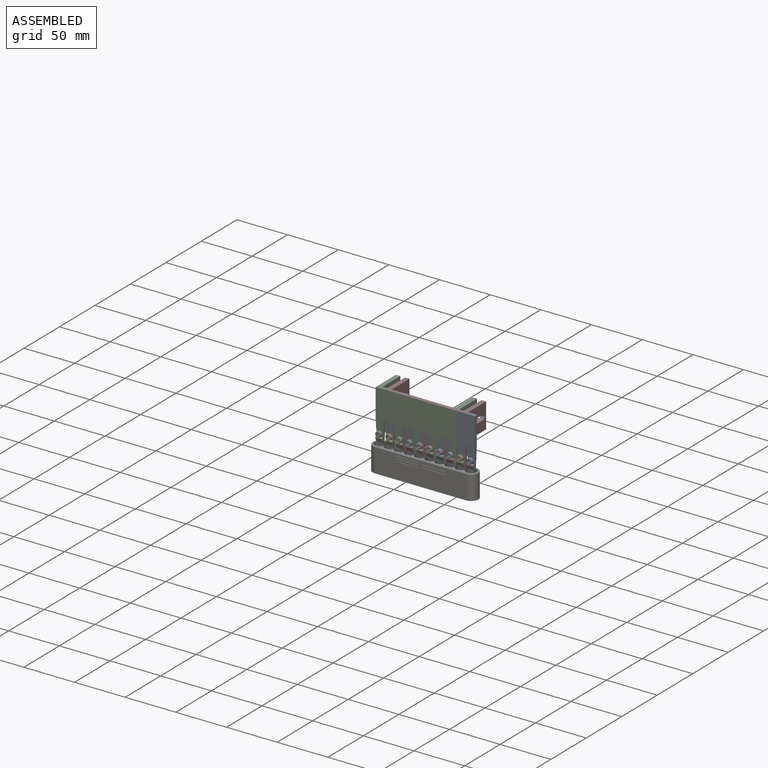
[diagram: assembled view]
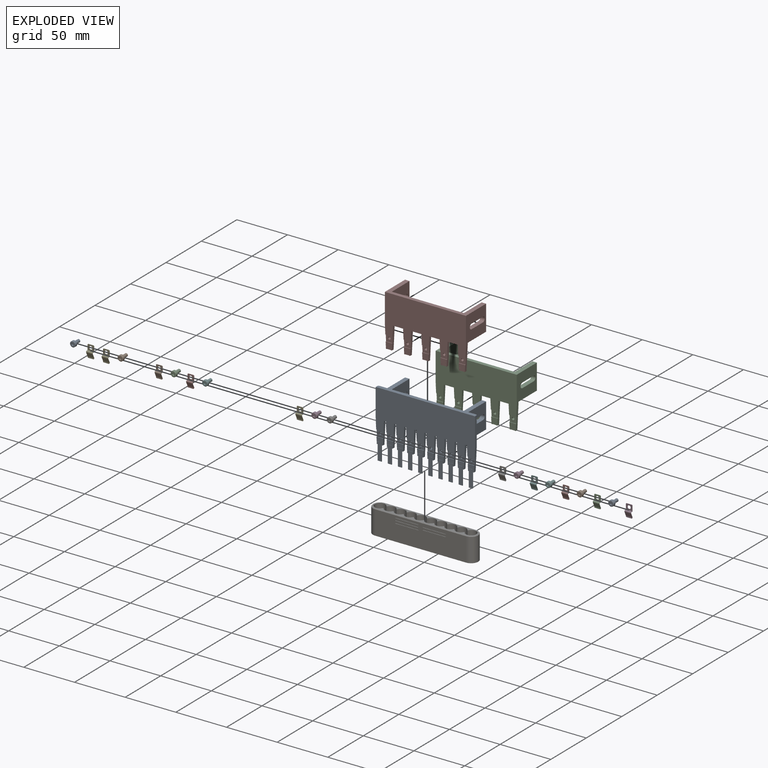
[diagram: exploded view]
GUIDED TOUR — MATED ASSEMBLY (Onshape document 8a0343a597088092eac7aeed, AutoMate assembly 8a0343a597088092eac7aeed_e6791ab1a02a11b802dfef5e_fe3fe33bd26811dbdfa1959e_default)

This assembly has 24 components, labeled P0..P23 below (a component is one placed occurrence of a part; the same part can appear more than once), held together by 5 mates. A mate is a constraint between two components; its type names the relative motion it leaves free:
  FASTENED — locks the two components together rigidly (no relative motion).
Axis/direction vectors are unit vectors and 'through' points are millimeter coordinates, both in the assembly's world frame.

MATES
  1. FASTENED "緊固 2": P7 <-> P16, direction (0.000, 0.000, -1.000) through (-52.23, -11.75, -7.50) mm
  2. FASTENED "緊固 5": P8 <-> P20, direction (0.000, 1.000, 0.000) through (-59.43, -27.55, -23.00) mm
  3. FASTENED "緊固 3": P22 <-> P16, direction (0.000, 0.000, 1.000) through (-59.43, -27.45, -32.00) mm
  4. FASTENED "緊固 4": P20 <-> P16, direction (0.000, 1.000, 0.000) through (-59.43, -27.15, -23.00) mm
  5. FASTENED "緊固 1": P16 <-> P10, direction (0.000, -1.000, 0.000) through (-59.43, -27.15, -23.00) mm

ASSEMBLY ORDER
  1. P16 — the base component [order heuristic]
  2. P7 — core [order heuristic]
  3. P10 — core [order heuristic]
  4. P22 [order verified]
  5. P14 [order verified]
  6. P6 [order verified]
  7. P3 [order verified]
  8. P4 [order verified]
  9. P11 [order verified]
  10. P5 [order verified]
  11. P13 [order verified]
  12. P15 [order verified]
  13. P21 [order verified]
  14. P23 [order verified]
  15. P2 [order verified]
  16. P1 [order verified]
  17. P17 [order verified]
  18. P18 [order verified]
  19. P9 [order verified]
  20. P12 [order verified]
  21. P0 [order verified]
  22. P19 [order verified]
  23. P8 [order verified]
  24. P20 [order verified]
(P22 verified with a relaxed clearance tolerance: the source model stores slight part interference there.)
Order-tag legend:
  [order verified] — this step's position reverses a verified removal order: the component was checked to insert without passing through the ones already placed.
  [order heuristic] — the first 3 components form the assembly's core: parts whose collision-free extraction could not be verified, listed in mate-graph order.

Of the 24 components, 10 carry the full construction recipe — the FeatureScript program that regenerates the part's solid from scratch; the rest are supplied as boundary geometry only.
Because this assembly has more than 12 components, the tour below covers the 12 most significant ones individually (every recipe-attached component first, then the largest by part volume), in assembly order; the remaining 12 are summarized together in a grouped section at the end.
Each toured component is shown spotlighted twice — in the assembled view, then in the exploded view, where a leader line traces a displaced component back to its assembled socket (saturated green if recipe-attached, orange if geometry-only; every other component desaturated gray) — followed by its recipe or geometry summary and the mates that hold it.
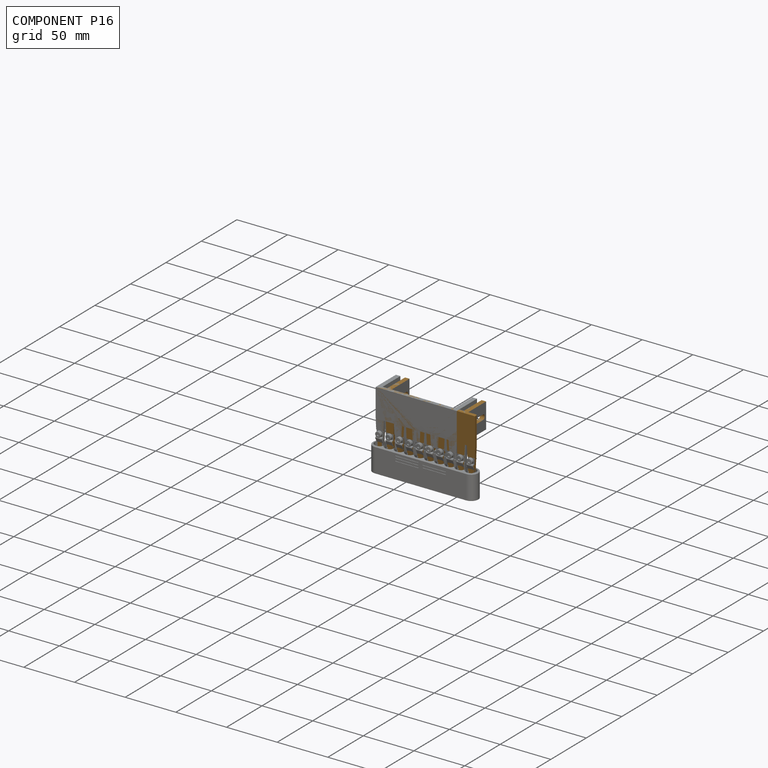
[diagram: component P16 — assembled]
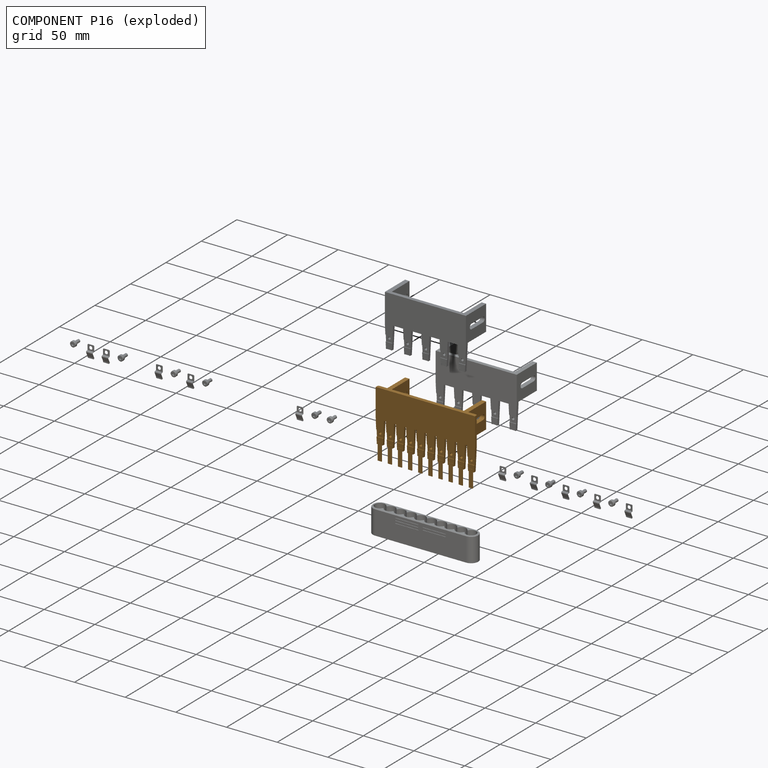
[diagram: component P16 — exploded]
COMPONENT P16 — geometry summary (no construction recipe available for this part):
  bounding box: 98.0 x 65.0 x 28.7 mm
  B-rep topology: 1 solid, 252 faces, 1456 edges
  volume: 19314 mm^3 (11% of its bounding box)
  symmetry: mirror-symmetric across its x mid-plane
Held by: FASTENED mate "緊固 2" to P7; FASTENED mate "緊固 3" to P22; FASTENED mate "緊固 4" to P20; FASTENED mate "緊固 1" to P10.
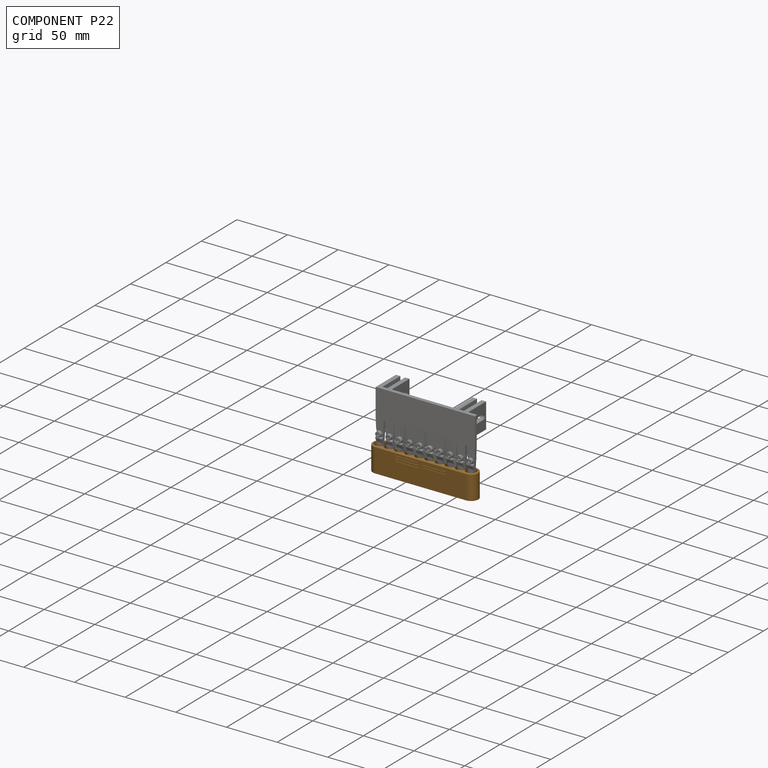
[diagram: component P22 — assembled]
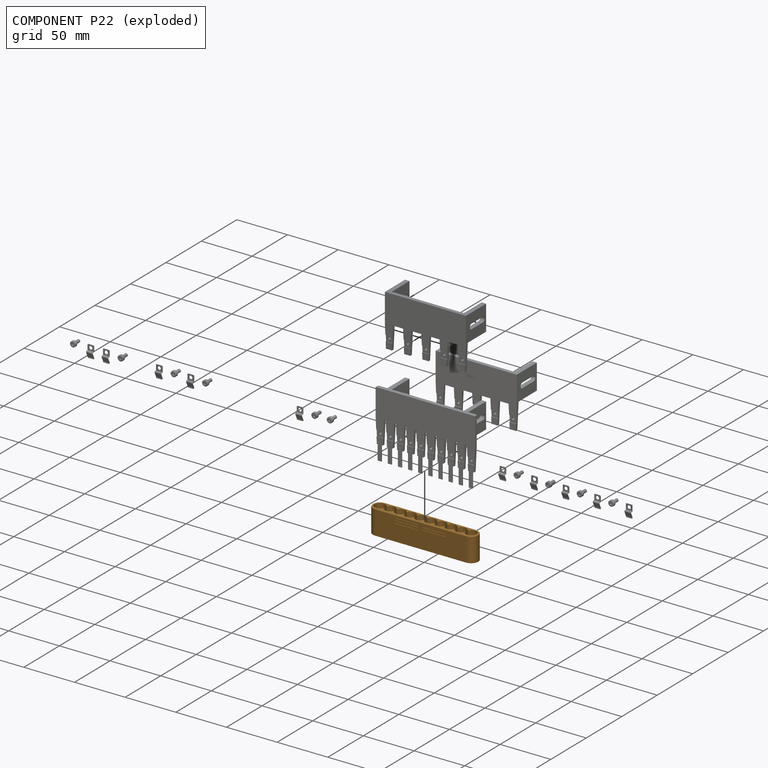
[diagram: component P22 — exploded]
COMPONENT P22 — geometry summary (no construction recipe available for this part):
  bounding box: 104.0 x 24.0 x 14.0 mm
  B-rep topology: 1 solid, 112 faces, 556 edges
  volume: 21132 mm^3 (60% of its bounding box)
  symmetry: 2-fold rotationally symmetric about the y axis; mirror-symmetric across its x mid-plane, z mid-plane
Held by: FASTENED mate "緊固 3" to P16.
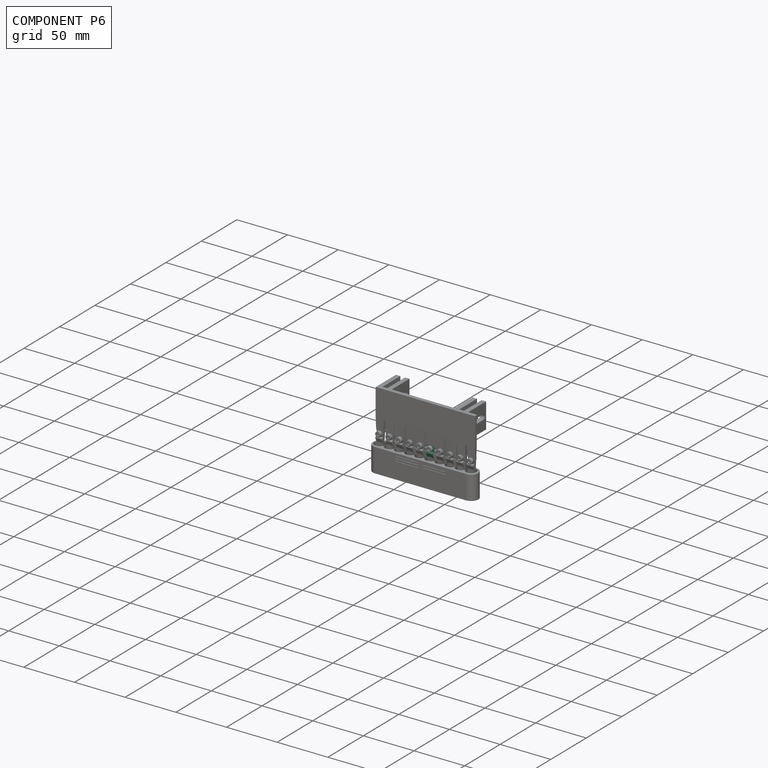
[diagram: component P6 — assembled]
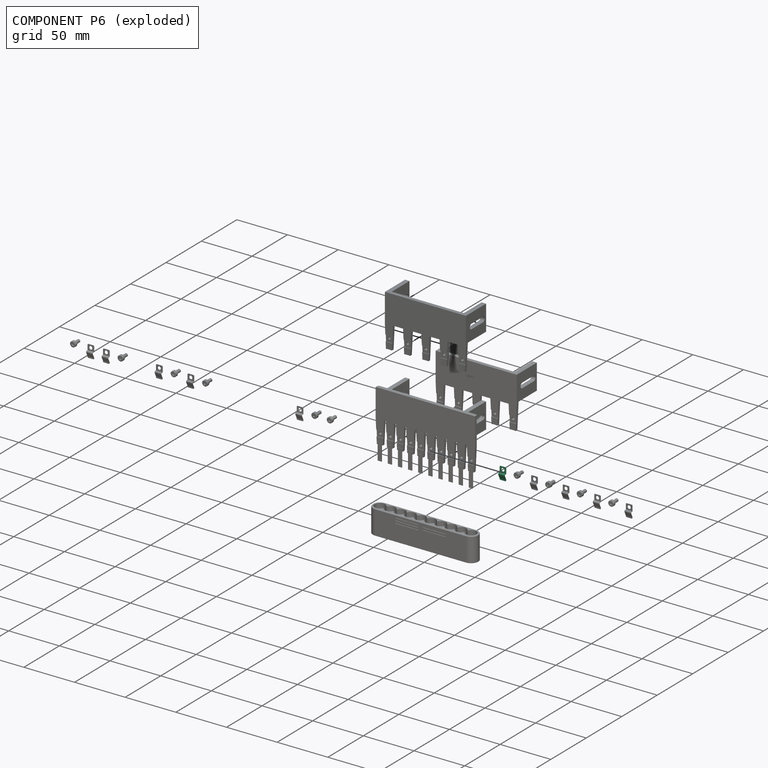
[diagram: component P6 — exploded]
COMPONENT P6 — same part as P1 (CADFS 00800632); its construction recipe is shown at P1.
Held by: no mates (free).
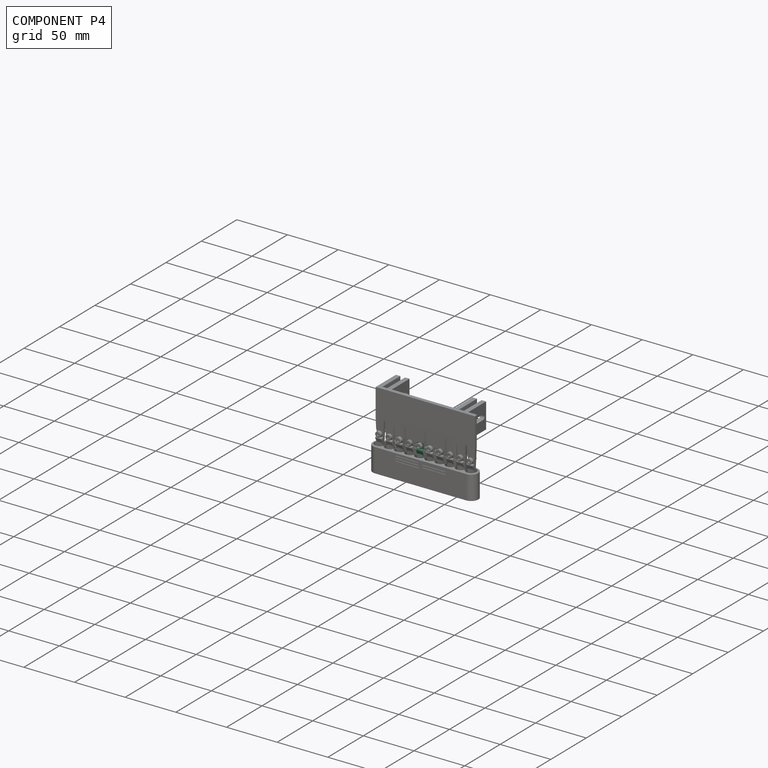
[diagram: component P4 — assembled]
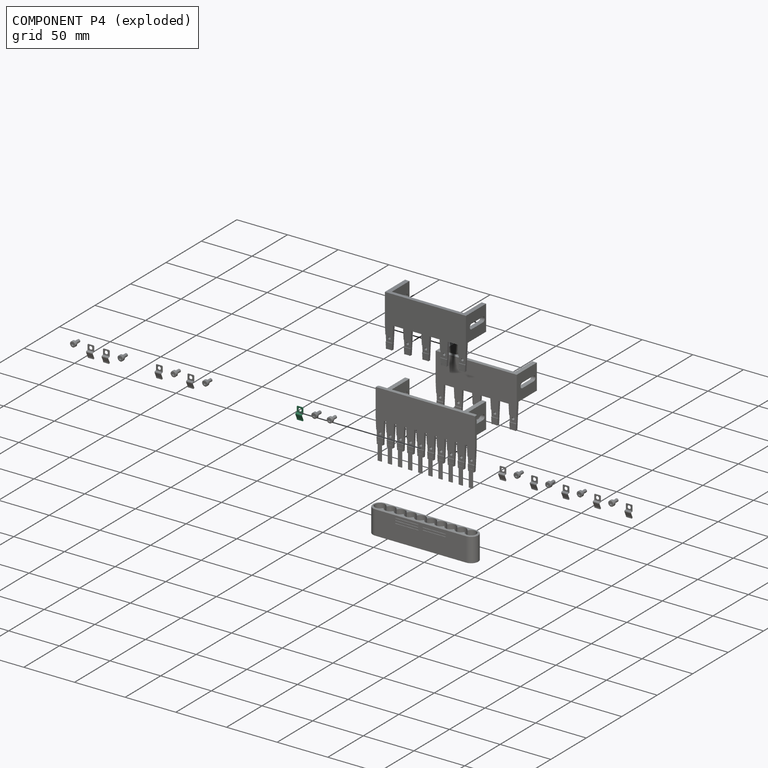
[diagram: component P4 — exploded]
COMPONENT P4 — same part as P1 (CADFS 00800632); its construction recipe is shown at P1.
Held by: no mates (free).
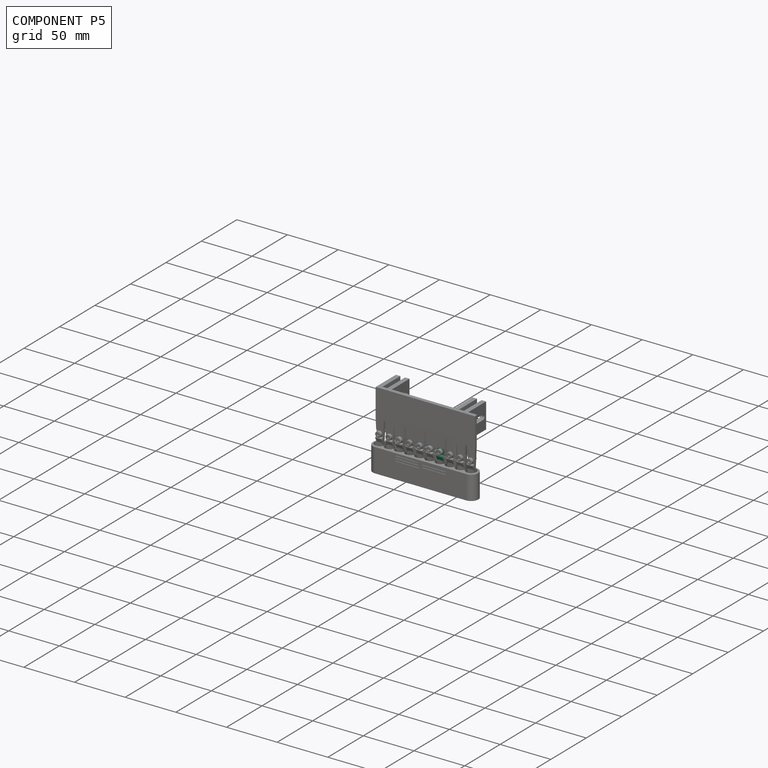
[diagram: component P5 — assembled]
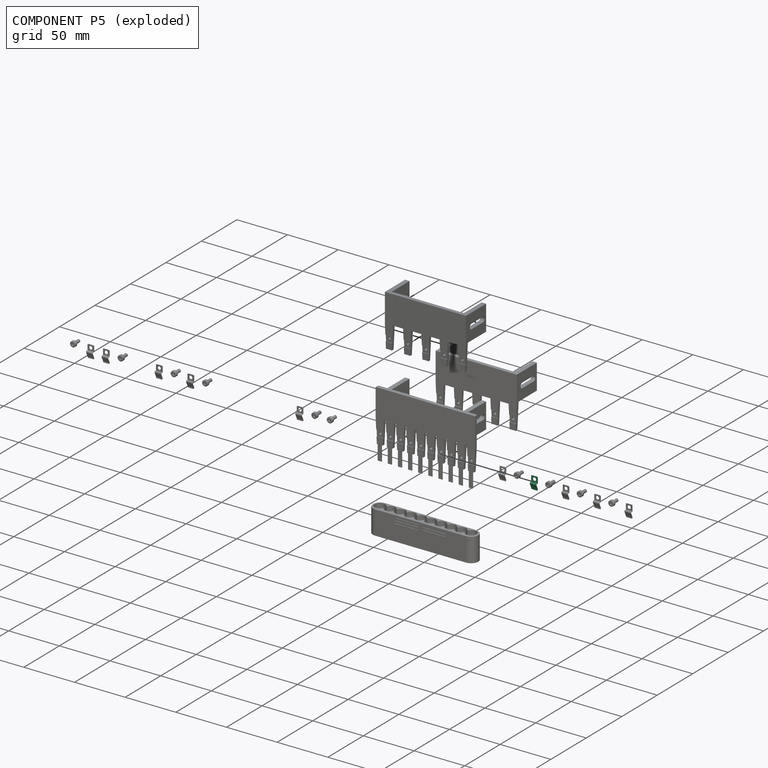
[diagram: component P5 — exploded]
COMPONENT P5 — same part as P1 (CADFS 00800632); its construction recipe is shown at P1.
Held by: no mates (free).
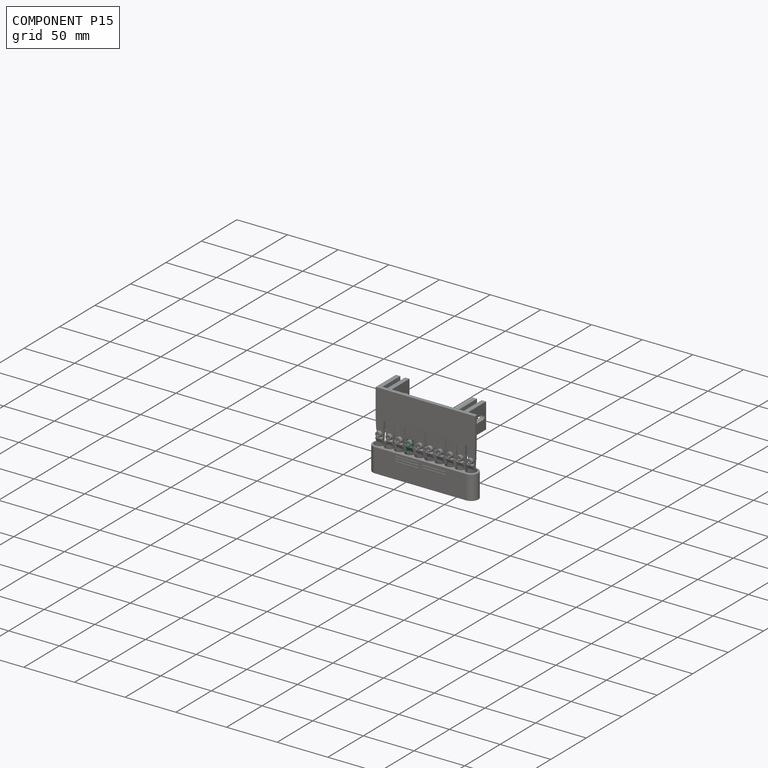
[diagram: component P15 — assembled]
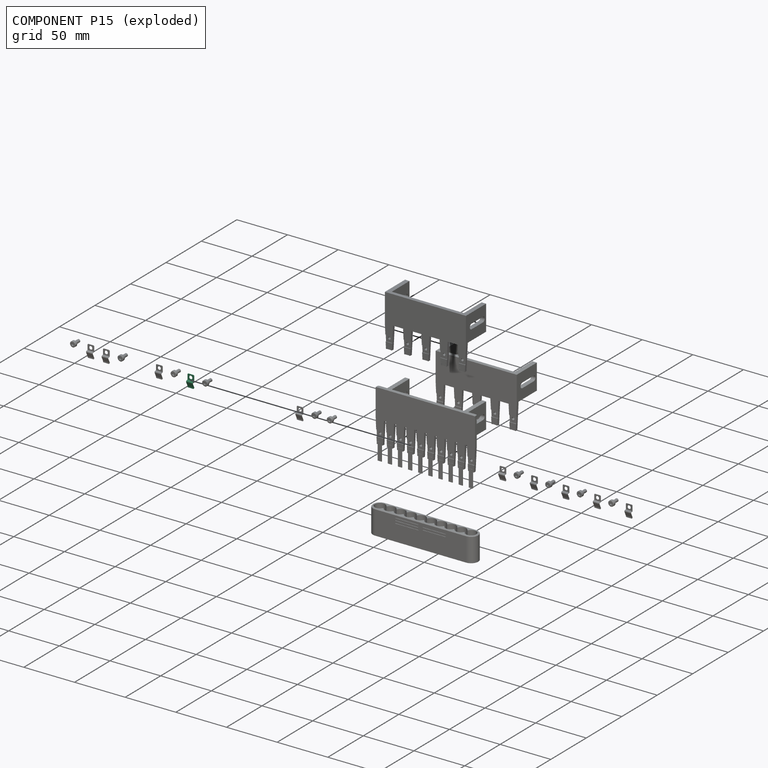
[diagram: component P15 — exploded]
COMPONENT P15 — same part as P1 (CADFS 00800632); its construction recipe is shown at P1.
Held by: no mates (free).
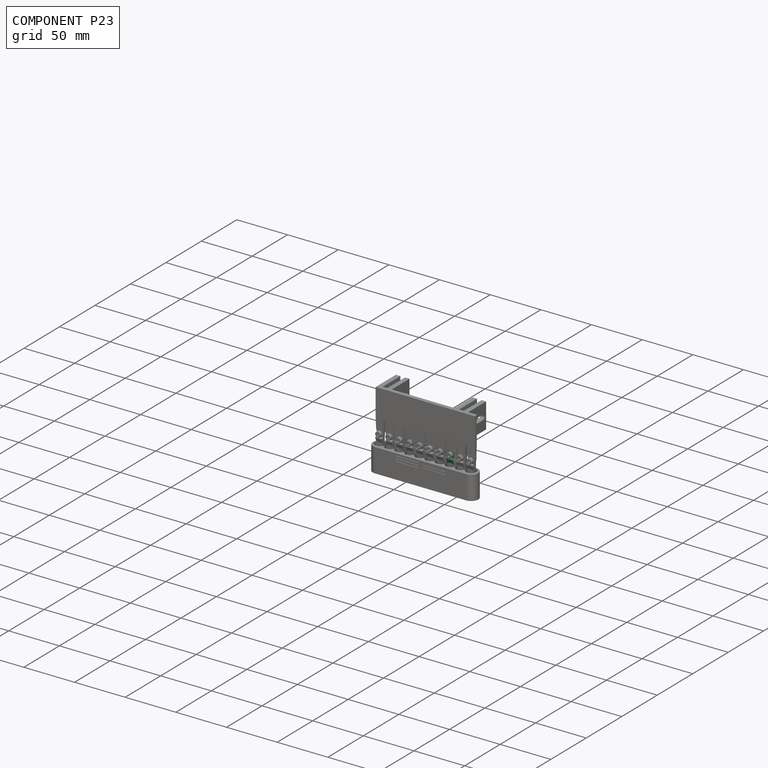
[diagram: component P23 — assembled]
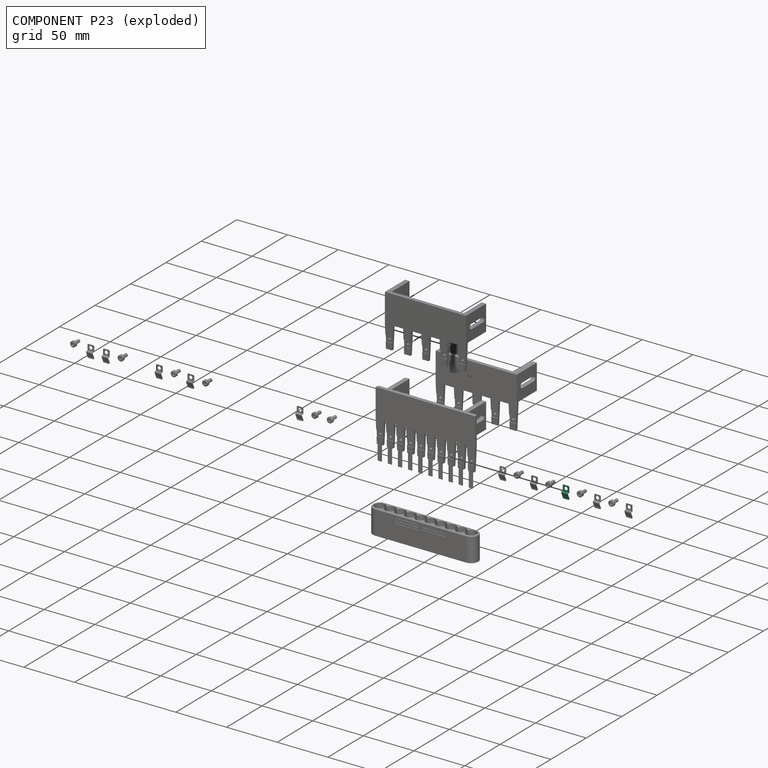
[diagram: component P23 — exploded]
COMPONENT P23 — same part as P1 (CADFS 00800632); its construction recipe is shown at P1.
Held by: no mates (free).
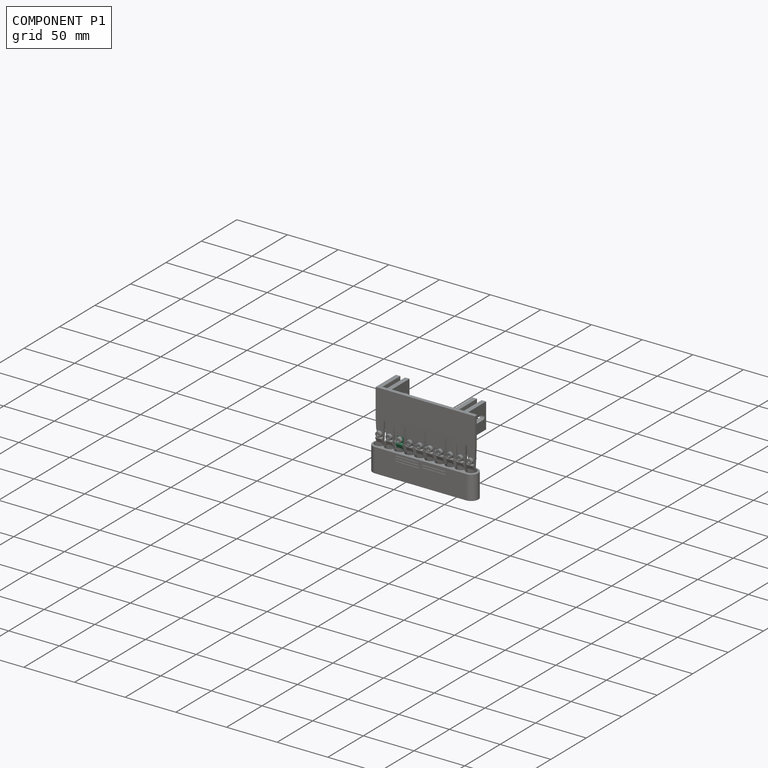
[diagram: component P1 — assembled]
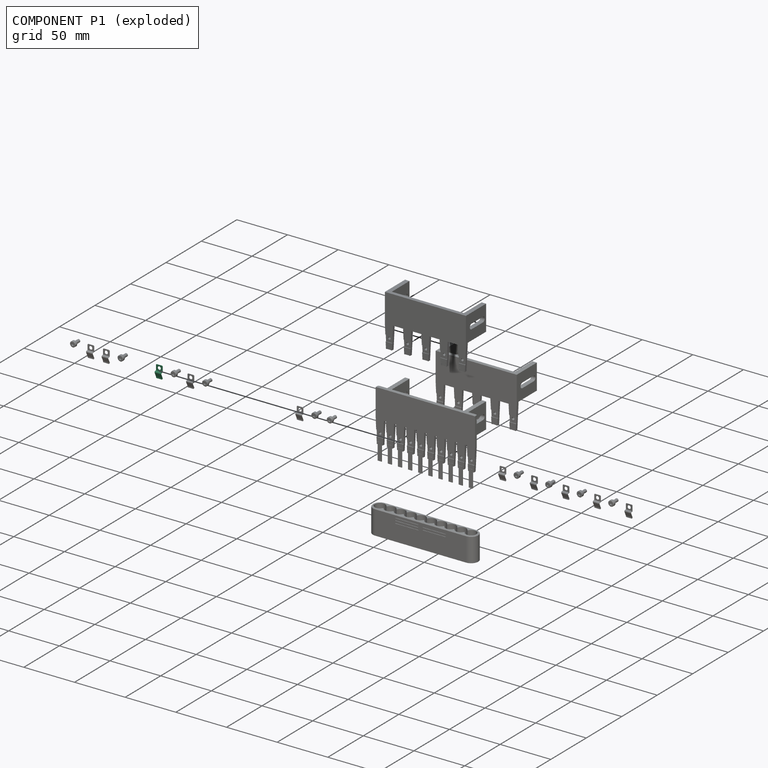
[diagram: component P1 — exploded]
COMPONENT P1 — recipe-attached (CADFS 00800632, mesh-verified: the recipe's output STEP matches this component's geometry to below the mesh-comparison resolution (tessellation chordal tolerance ~0.0211 mm)).
Held by: no mates (free).
Construction recipe (FeatureScript — the CAD program that rebuilds this solid; sketch coordinates are in the units given by the * unit suffixes, e.g. mm):

FeatureScript 1511;
import(path : "onshape/std/geometry.fs", version : "1511.0");
import(path : "onshape/std/common.fs", version : "1511.0");
const mm = millimeter;
const VERTEX = EntityType.VERTEX;
const EDGE = EntityType.EDGE;
const FACE = EntityType.FACE;
const BODY = EntityType.BODY;
function v(x, y){return vector(x, y);}
function OD(order){return orderDisambiguation(order);}
function OSD(set){return originalSetDisambiguation(set);}
function TD(topology){return topologyDisambiguation(topology);}
function TDD(query){return trueDependencyDisambiguation(query);}
function sQuery(a, b, c) {return sketchEntityQuery(a, b, c);}

annotation { "Feature Type Name" : "Feature", "Feature Type Description" : "" }
export const myFeature = defineFeature(function(context is Context, id is Id, definition is map)
    precondition{}
    {
        {
            var Q0;
            Q0=qCreatedBy(makeId("Right.planeOp"),FACE);
            var sketch = newSketch(context, id + "F0", { "sketchPlane" : qUnion([Q0])});
            skLineSegment(sketch, "E0", {"start": v(0, 0) * mm, "end": v(-5.4, 0) * mm});
            skLineSegment(sketch, "E1", {"start": v(-6, 0.6) * mm, "end": v(-6, 1.4) * mm});
            skLineSegment(sketch, "E2", {"start": v(-6.85, 1.94) * mm, "end": v(-11, 0) * mm});
            skLineSegment(sketch, "E3", {"start": v(-11, 0) * mm, "end": v(-12.33, 0) * mm});
            skLineSegment(sketch, "E4.0", {"start": v(0, 0.4) * mm, "end": v(-5.4, 0.4) * mm});
            skLineSegment(sketch, "E5.0", {"start": v(-5.6, 0.6) * mm, "end": v(-5.6, 1.4) * mm});
            skLineSegment(sketch, "E6.0", {"start": v(-7.02, 2.3) * mm, "end": v(-11.09, 0.4) * mm});
            skLineSegment(sketch, "E7.0", {"start": v(-11.09, 0.4) * mm, "end": v(-12.33, 0.4) * mm});
            skLineSegment(sketch, "E8", {"start": v(-12.33, 0) * mm, "end": v(-12.33, 0.4) * mm});
            skPoint(sketch, "E9.visualSharp", {"position": v(-6, 2.34) * mm});
            skArc(sketch, "E9.filletArc", {"start": v(-6, 1.4) * mm, "mid": v(-6.28, 1.9) * mm, "end": v(-6.85, 1.94) * mm});
            skArc(sketch, "E10.0", {"start": v(-5.6, 1.4) * mm, "mid": v(-6.06, 2.24) * mm, "end": v(-7.02, 2.3) * mm});
            skPoint(sketch, "E11.visualSharp", {"position": v(-5.6, 0.4) * mm});
            skArc(sketch, "E11.filletArc", {"start": v(-5.6, 0.6) * mm, "mid": v(-5.54, 0.46) * mm, "end": v(-5.4, 0.4) * mm});
            skPoint(sketch, "E12.visualSharp", {"position": v(-6, 0) * mm});
            skArc(sketch, "E12.filletArc", {"start": v(-6, 0.6) * mm, "mid": v(-5.82, 0.18) * mm, "end": v(-5.4, 0) * mm});
            skLineSegment(sketch, "E13", {"start": v(0, 0) * mm, "end": v(0, 0.4) * mm});
            skSolve(sketch);
        }
        {
            var Q0;
            Q0 = qSketchRegion(id + "F0", true);
            extrude(context, id + "F1", {"entities" : qUnion([Q0]), "endBound" : BoundingType.SYMMETRIC, "depth" : 6.35 * mm, "offsetDistance" : 25 * mm});
        }
        {
            var Q0;
            Q0=makeQuery(id+"F1.opExtrude","CAP_EDGE",EDGE,{"disambiguationData":[OSD([sQuery(id+"F0.wireOp",EDGE,"E8")])],"isStart":false});
            var Q1;
            Q1=makeQuery(id+"F1.opExtrude","CAP_EDGE",EDGE,{"disambiguationData":[OSD([sQuery(id+"F0.wireOp",EDGE,"E8")])],"isStart":true});
            var Q2;
            Q2=makeQuery(id+"F1.opExtrude","CAP_EDGE",EDGE,{"disambiguationData":[OSD([sQuery(id+"F0.wireOp",EDGE,"E13")])],"isStart":false});
            var Q3;
            Q3=makeQuery(id+"F1.opExtrude","CAP_EDGE",EDGE,{"disambiguationData":[OSD([sQuery(id+"F0.wireOp",EDGE,"E13")])],"isStart":true});
            fillet(context, id + "F2", {"entities" : qUnion([Q0, Q1, Q2, Q3]), "radius" : 0.8 * mm, "tangentPropagation" : true, "allowEdgeOverflow" : false});
        }
        {
            var Q0;
            Q0=makeQuery(id+"F1.opExtrude","SWEPT_FACE",FACE,{"disambiguationData":[OSD([sQuery(id+"F0.wireOp",EDGE,"E4.0")])]});
            var sketch = newSketch(context, id + "F3", { "sketchPlane" : qUnion([Q0])});
            skCircle(sketch, "E14", {"center": v(0, -2.8) * mm, "radius": 1.6 * mm});
            skSolve(sketch);
        }
        {
            var Q0;
            Q0=sQuery(id+"F3.wireOp",VERTEX,"E14.center");
            var Q1;
            Q1=makeQuery(id+"F1.opExtrude","SWEPT_BODY",BODY,{"disambiguationData":[OSD([sQuery(id+"F0.wireOp",EDGE,"E0"),sQuery(id+"F0.wireOp",EDGE,"E1"),sQuery(id+"F0.wireOp",EDGE,"E2"),sQuery(id+"F0.wireOp",EDGE,"E3"),sQuery(id+"F0.wireOp",EDGE,"E4.0"),sQuery(id+"F0.wireOp",EDGE,"E5.0"),sQuery(id+"F0.wireOp",EDGE,"E6.0"),sQuery(id+"F0.wireOp",EDGE,"E7.0"),sQuery(id+"F0.wireOp",EDGE,"E8"),sQuery(id+"F0.wireOp",EDGE,"E9.filletArc"),sQuery(id+"F0.wireOp",EDGE,"E10.0"),sQuery(id+"F0.wireOp",EDGE,"E11.filletArc"),sQuery(id+"F0.wireOp",EDGE,"E12.filletArc"),sQuery(id+"F0.wireOp",EDGE,"E13")])]});
            hole(context, id + "F4", {"style" : HoleStyle.SIMPLE, "endStyle" : HoleEndStyle.THROUGH, "holeDiameter" : 3.2 * mm, "majorDiameter" : 5 * mm, "isTappedThrough" : true, "tappedDepth" : 12 * mm, "tapClearance" : 3, "locations" : qUnion([Q0]), "scope" : qUnion([Q1])});
        }
    });
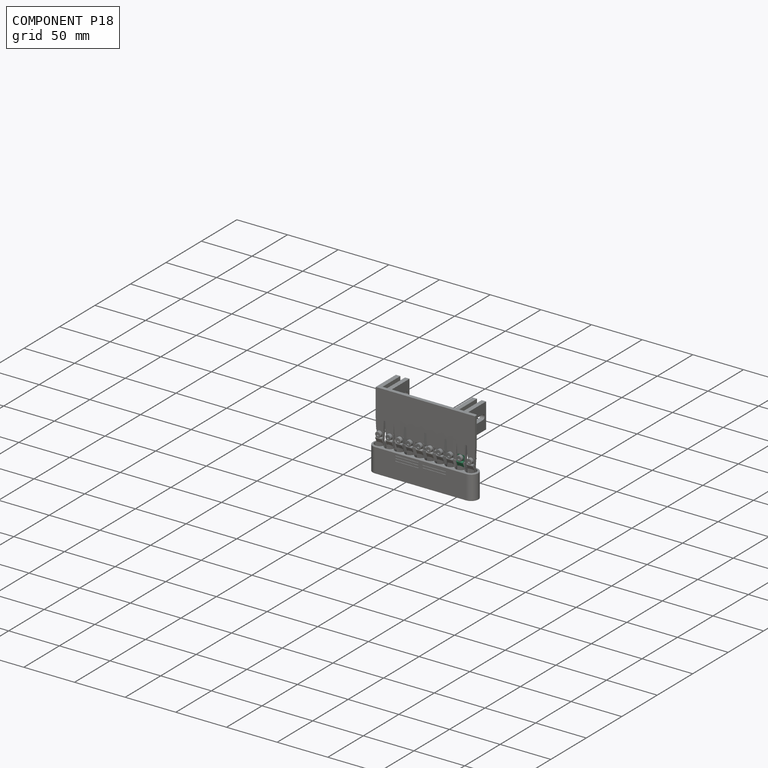
[diagram: component P18 — assembled]
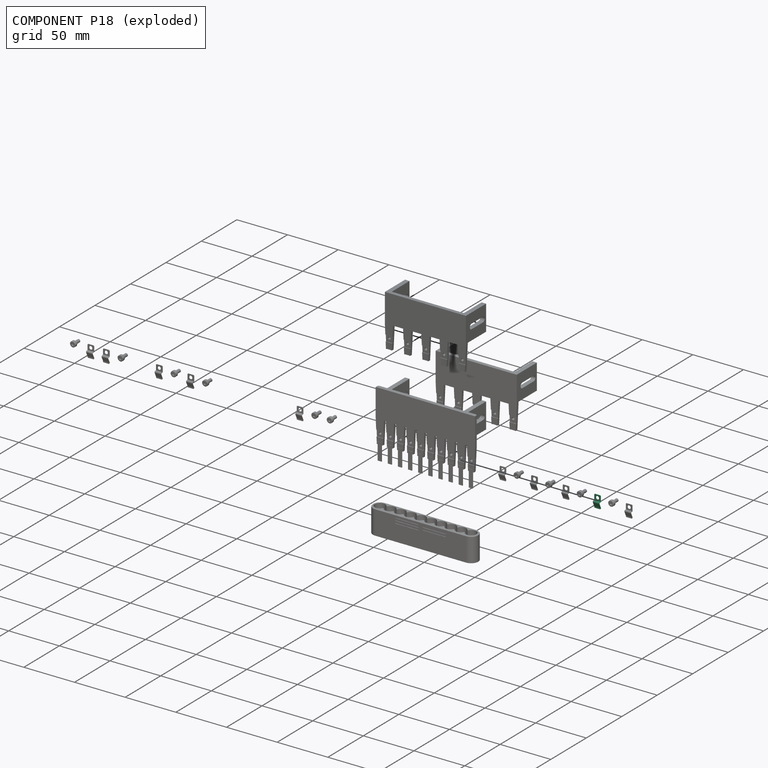
[diagram: component P18 — exploded]
COMPONENT P18 — same part as P1 (CADFS 00800632); its construction recipe is shown at P1.
Held by: no mates (free).
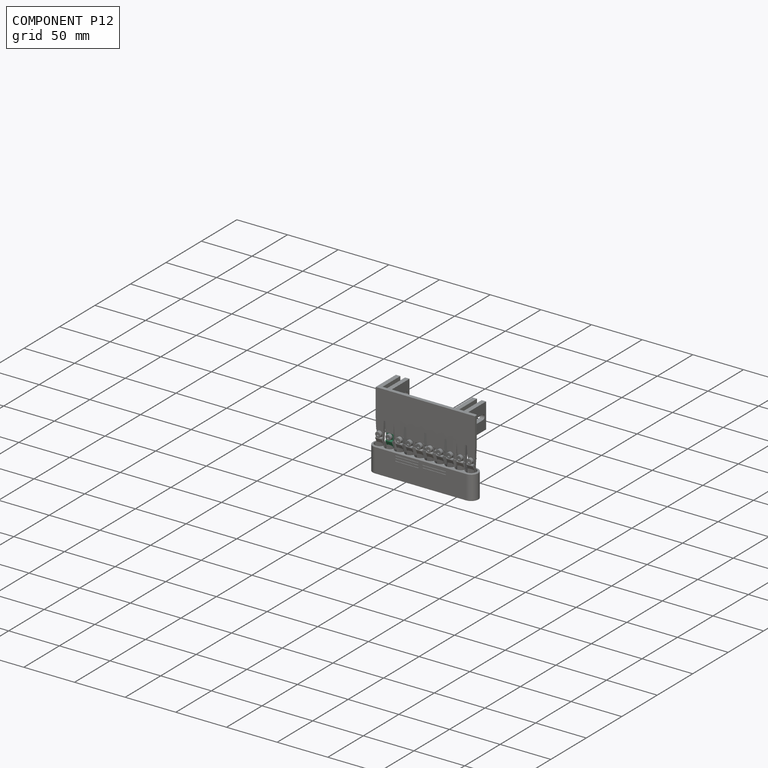
[diagram: component P12 — assembled]
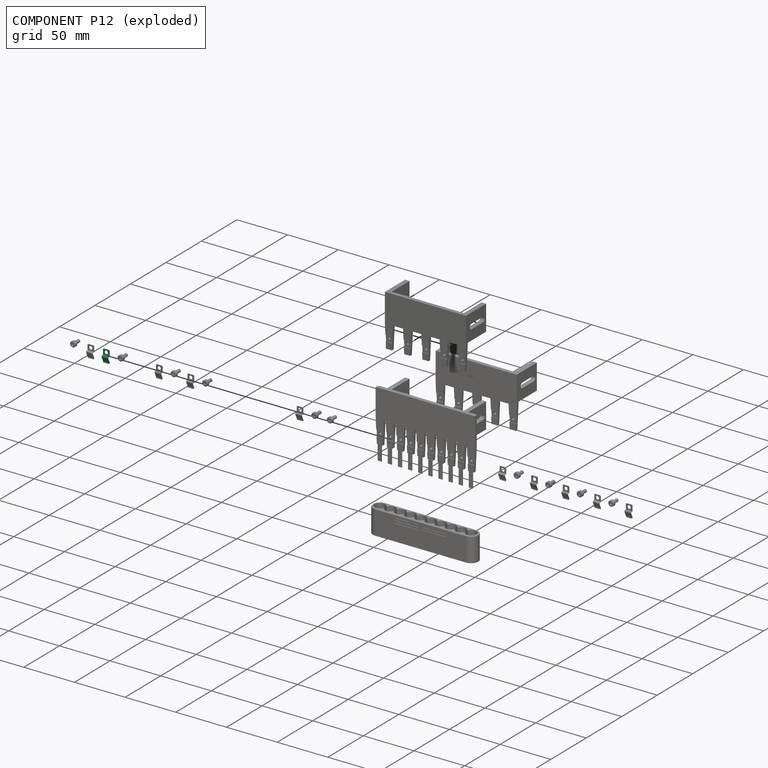
[diagram: component P12 — exploded]
COMPONENT P12 — same part as P1 (CADFS 00800632); its construction recipe is shown at P1.
Held by: no mates (free).
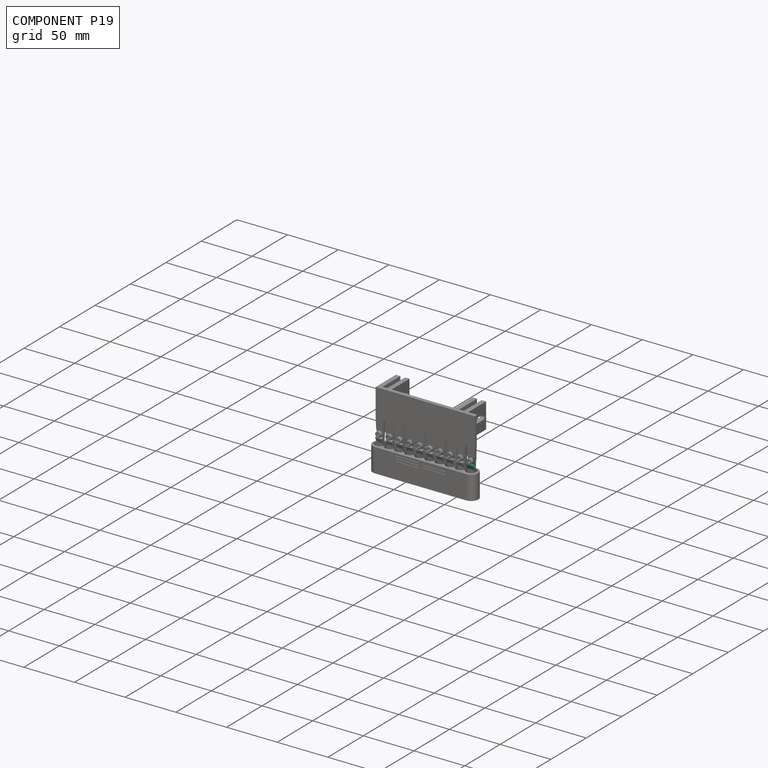
[diagram: component P19 — assembled]
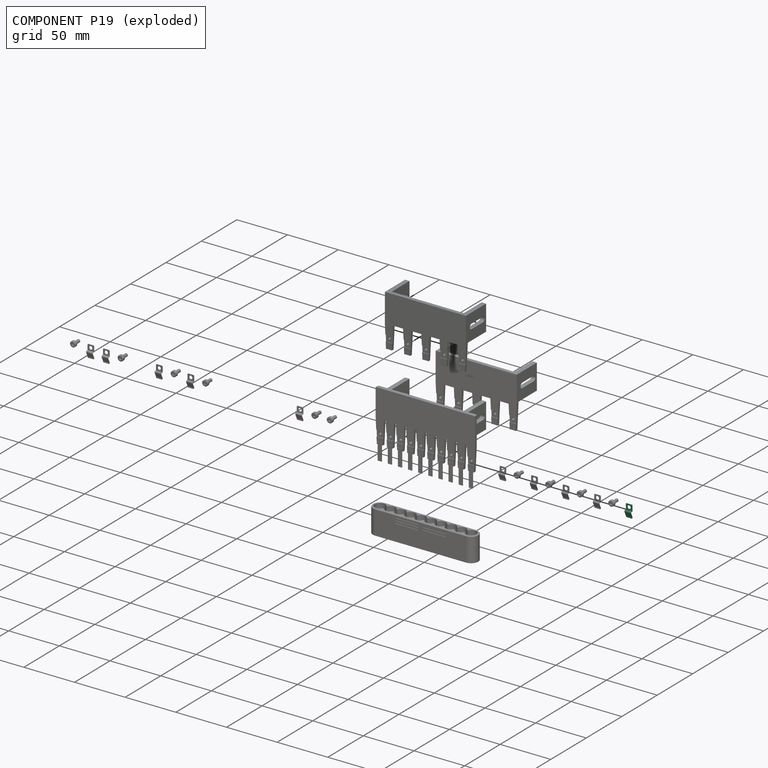
[diagram: component P19 — exploded]
COMPONENT P19 — same part as P1 (CADFS 00800632); its construction recipe is shown at P1.
Held by: no mates (free).
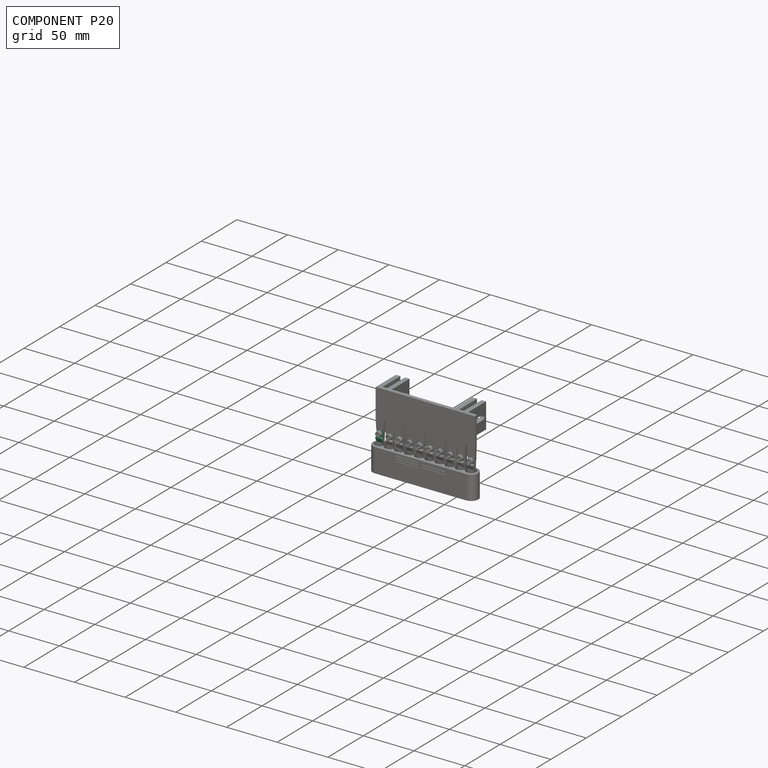
[diagram: component P20 — assembled]
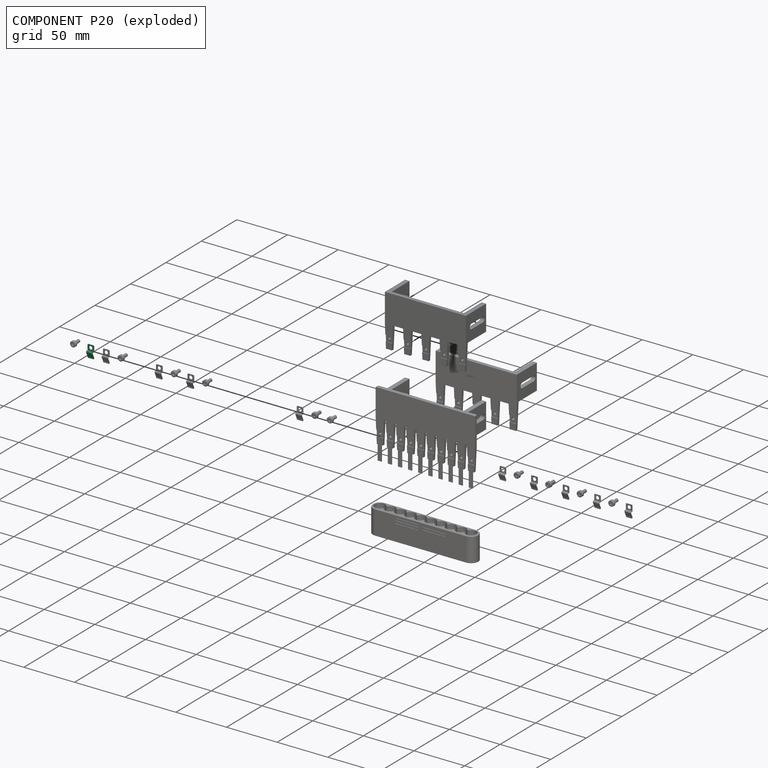
[diagram: component P20 — exploded]
COMPONENT P20 — same part as P1 (CADFS 00800632); its construction recipe is shown at P1.
Held by: FASTENED mate "緊固 5" to P8; FASTENED mate "緊固 4" to P16.
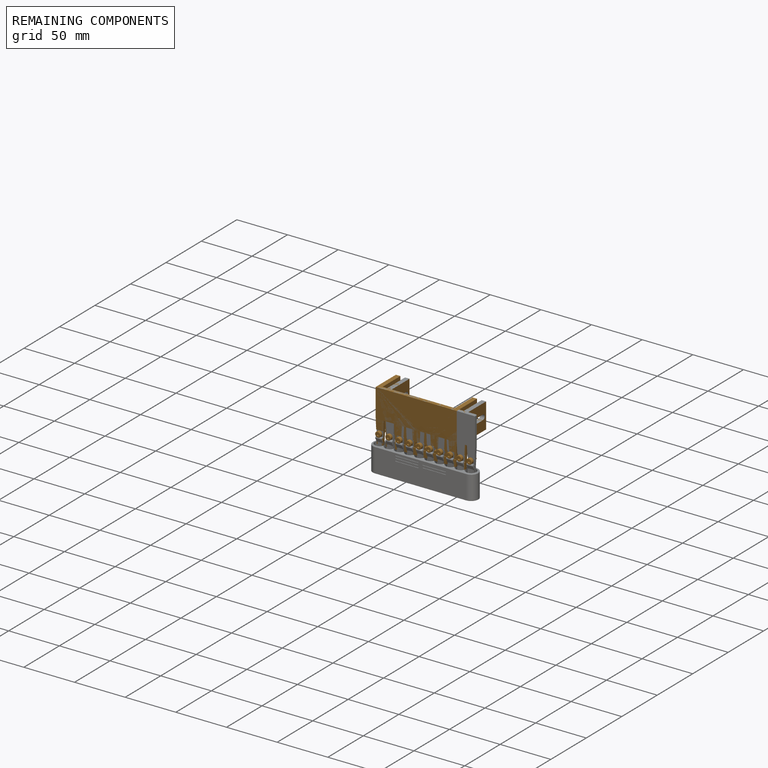
[diagram: remaining components — assembled]
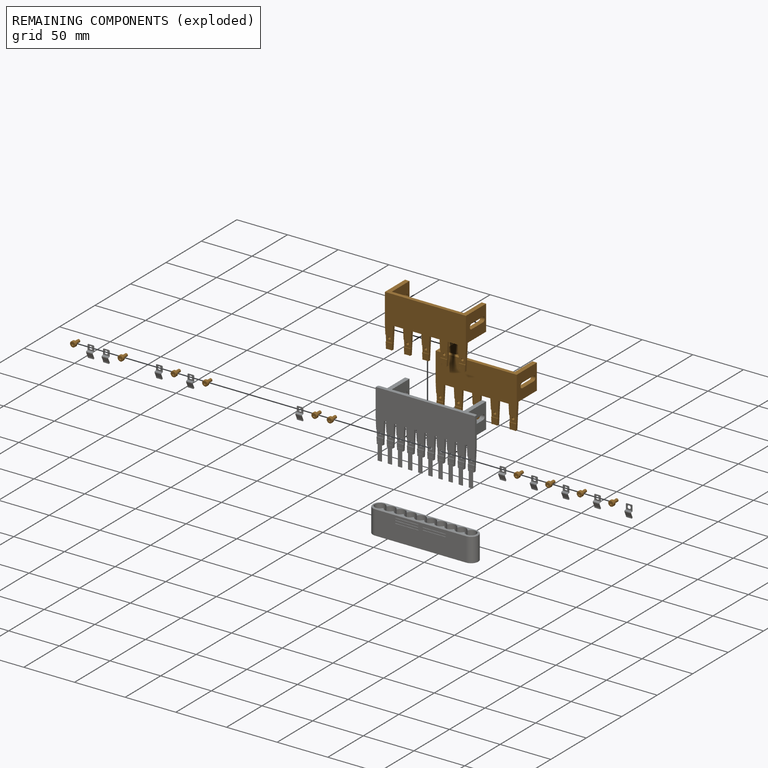
[diagram: remaining components — exploded]
REMAINING COMPONENTS (grouped) — the 12 components below fall outside the per-component tour by the significance rule stated above; both spotlight views highlight the whole group.
  P7: bounding box 80.0 x 50.5 x 28.5 mm, volume 14848 mm^3. Held by: FASTENED mate "緊固 2" to P16.
  P10: bounding box 80.0 x 50.5 x 28.5 mm, volume 14848 mm^3. Held by: FASTENED mate "緊固 1" to P16.
  P14: bounding box 9.0 x 5.5 x 5.5 mm, volume 105 mm^3. Held by: no mates (free).
  P3: bounding box 9.0 x 5.5 x 5.5 mm, volume 105 mm^3. Held by: no mates (free).
  P11: bounding box 9.0 x 5.5 x 5.5 mm, volume 105 mm^3. Held by: no mates (free).
  P13: bounding box 9.0 x 5.5 x 5.5 mm, volume 105 mm^3. Held by: no mates (free).
  P21: bounding box 9.0 x 5.5 x 5.5 mm, volume 105 mm^3. Held by: no mates (free).
  P2: bounding box 9.0 x 5.5 x 5.5 mm, volume 105 mm^3. Held by: no mates (free).
  P17: bounding box 9.0 x 5.5 x 5.5 mm, volume 105 mm^3. Held by: no mates (free).
  P9: bounding box 9.0 x 5.5 x 5.5 mm, volume 105 mm^3. Held by: no mates (free).
  P0: bounding box 9.0 x 5.5 x 5.5 mm, volume 105 mm^3. Held by: no mates (free).
  P8: bounding box 9.0 x 5.5 x 5.5 mm, volume 105 mm^3. Held by: FASTENED mate "緊固 5" to P20.
PROVENANCE & LICENSES
Assembly (occurrences, transforms, mates, per-part STEP geometry): AutoMate dataset, Zenodo record 7776208, CC0.
Construction recipes: CADFS (HuggingFace VladPyatov/CADFS, CC-BY-4.0, layered over the ABC dataset), FeatureScript reconstruction programs keyed by ABC model id.
Join: ABC meta listings map ABC model id -> Onshape documentId; within a shared document, parts are matched by geometric signature (bounding-box dims + volume at 0.1% relative tolerance, exact B-rep face/solid counts).
Verification: 10 of this assembly's 24 components carry a recipe attachment, and every attachment is mesh-verified: the CADFS STEP and the AutoMate member STEP were compared as meshes in their shared local frame (symmetric sampled-point-to-mesh distance); worst across the 10 attachments: below the mesh-comparison resolution (tessellation chordal tolerance ~0.0211 mm) on a 14 mm part.
Renders: orthographic iso camera (az 35 / el 25); the floor grid conveys scale (grid pitch printed in each image; no ruler). In the exploded view each component is displaced by its stored offset vector: the offsets alone carry the explosion direction (mate normal/axis signs are not orientation cues and do not encode it), and separation distances are assigned per mate-chain, not proportionally to assembly-order depth.
